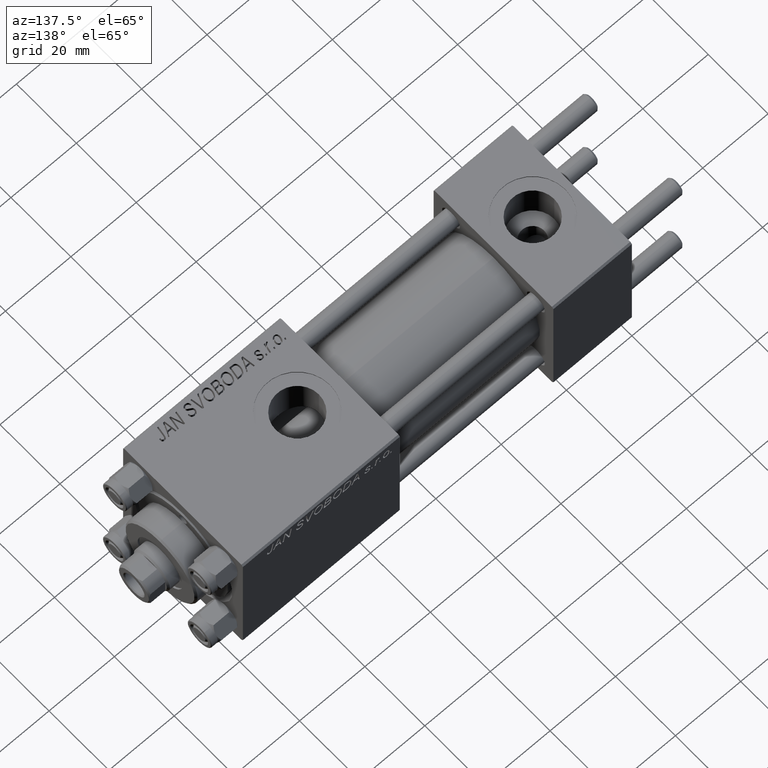
[diagram: clean part render]
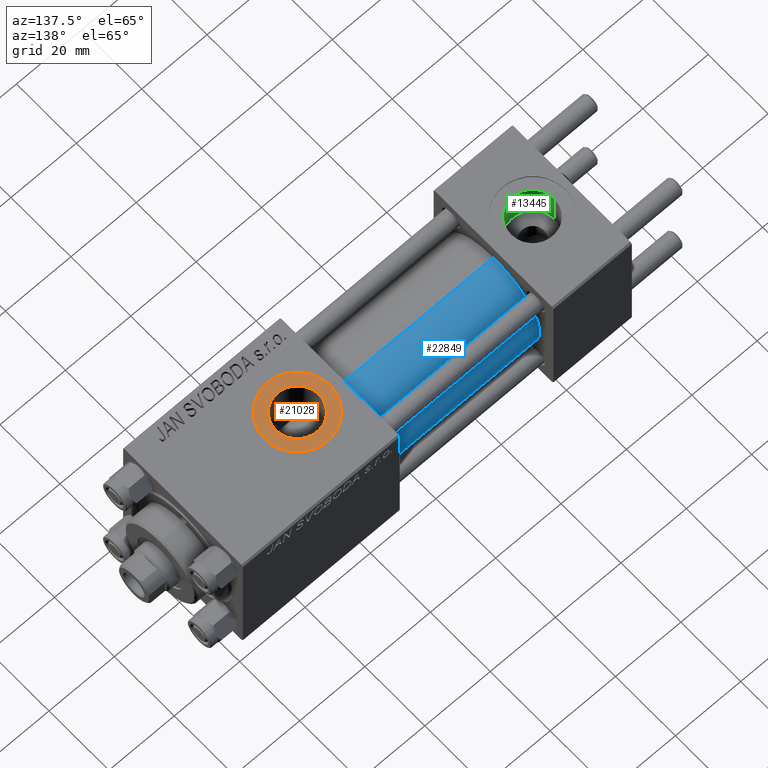
[diagram: same view with three faces highlighted in distinct colors, each labeled with its STEP entity id]
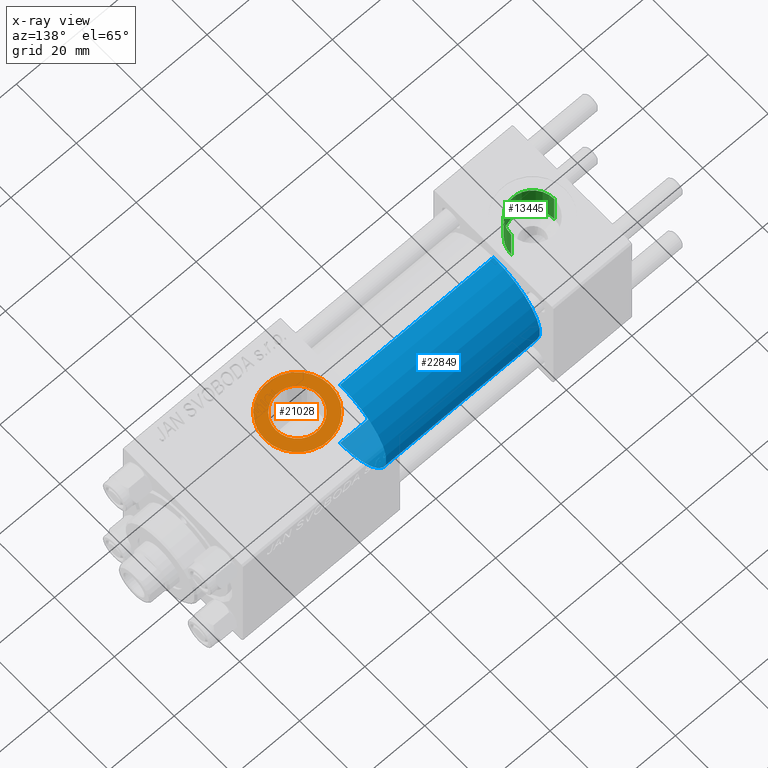
[diagram: x-ray of the same camera — body ghosted, the three highlighted faces saturated]
A machine part, auxiliary view with three faces highlighted in distinct colors.
The next image is the same camera in x-ray (body ghosted, the three faces saturated) — at least one of them is partly hidden behind the body in this view.
Their STEP definitions:

[orange] entity #21028 — the highlighted planar face has unit normal (0, 0, 1).
#3891 = CARTESIAN_POINT ( 'NONE',  ( 73.99999999999845102, -5.100766768292640183E-16, 19.80000000000000071 ) ) ;
#4018 = FACE_BOUND ( 'NONE', #21184, .T. ) ;
#4790 = FACE_OUTER_BOUND ( 'NONE', #8152, .T. ) ;
#4910 = DIRECTION ( 'NONE',  ( 1.000000000000000000, 0.000000000000000000, 0.000000000000000000 ) ) ;
#5058 = CARTESIAN_POINT ( 'NONE',  ( 84.00000000000000000, -1.734723475976806897E-15, 19.80000000000000071 ) ) ;
#8152 = EDGE_LOOP ( 'NONE', ( #40155, #45210 ) ) ;
#9766 = DIRECTION ( 'NONE',  ( 1.000000000000000000, 0.000000000000000000, 0.000000000000000000 ) ) ;
#10457 = DIRECTION ( 'NONE',  ( 1.000000000000000000, 0.000000000000000000, 0.000000000000000000 ) ) ;
#12867 = AXIS2_PLACEMENT_3D ( 'NONE', #32316, #24989, #4910 ) ;
#13642 = AXIS2_PLACEMENT_3D ( 'NONE', #16283, #36628, #35587 ) ;
#14509 = AXIS2_PLACEMENT_3D ( 'NONE', #46203, #43053, #10457 ) ;
#14783 = ORIENTED_EDGE ( 'NONE', *, *, #20499, .T. ) ;
#16283 = CARTESIAN_POINT ( 'NONE',  ( 84.00000000000000000, -1.734723475976806897E-15, 19.80000000000000071 ) ) ;
#16395 = DIRECTION ( 'NONE',  ( -0.000000000000000000, -0.000000000000000000, -1.000000000000000000 ) ) ;
#18663 = CIRCLE ( 'NONE', #36180, 6.580000000001542837 ) ;
#19107 = VERTEX_POINT ( 'NONE', #21581 ) ;
#19671 = EDGE_CURVE ( 'NONE', #19107, #37206, #18663, .T. ) ;
#20499 = EDGE_CURVE ( 'NONE', #37206, #19107, #35348, .T. ) ;
#21028 = ADVANCED_FACE ( 'NONE', ( #4018, #4790 ), #36107, .T. ) ;
#21184 = EDGE_LOOP ( 'NONE', ( #14783, #41150 ) ) ;
#21581 = CARTESIAN_POINT ( 'NONE',  ( 90.58000000000154728, -9.289058821376599092E-16, 19.80000000000000071 ) ) ;
#24724 = DIRECTION ( 'NONE',  ( 1.000000000000000000, 0.000000000000000000, 0.000000000000000000 ) ) ;
#24989 = DIRECTION ( 'NONE',  ( -0.000000000000000000, -0.000000000000000000, -1.000000000000000000 ) ) ;
#25134 = DIRECTION ( 'NONE',  ( 0.000000000000000000, 0.000000000000000000, 1.000000000000000000 ) ) ;
#27728 = CARTESIAN_POINT ( 'NONE',  ( 94.00000000000154898, -1.734723475976806897E-15, 19.80000000000000071 ) ) ;
#27872 = CARTESIAN_POINT ( 'NONE',  ( 84.00000000000000000, -1.734723475976806897E-15, 19.80000000000000071 ) ) ;
#28755 = EDGE_CURVE ( 'NONE', #43520, #33661, #28875, .T. ) ;
#28875 = CIRCLE ( 'NONE', #37220, 10.00000000000154898 ) ;
#32316 = CARTESIAN_POINT ( 'NONE',  ( 84.00000000000000000, -1.734723475976806897E-15, 19.80000000000000071 ) ) ;
#33661 = VERTEX_POINT ( 'NONE', #3891 ) ;
#35348 = CIRCLE ( 'NONE', #12867, 6.580000000001542837 ) ;
#35587 = DIRECTION ( 'NONE',  ( 1.000000000000000000, 0.000000000000000000, -0.000000000000000000 ) ) ;
#36107 = PLANE ( 'NONE',  #13642 ) ;
#36180 = AXIS2_PLACEMENT_3D ( 'NONE', #27872, #16395, #24724 ) ;
#36228 = EDGE_CURVE ( 'NONE', #33661, #43520, #37014, .T. ) ;
#36628 = DIRECTION ( 'NONE',  ( 0.000000000000000000, 0.000000000000000000, 1.000000000000000000 ) ) ;
#37014 = CIRCLE ( 'NONE', #14509, 10.00000000000154898 ) ;
#37206 = VERTEX_POINT ( 'NONE', #49048 ) ;
#37220 = AXIS2_PLACEMENT_3D ( 'NONE', #5058, #25134, #9766 ) ;
#40155 = ORIENTED_EDGE ( 'NONE', *, *, #28755, .T. ) ;
#41150 = ORIENTED_EDGE ( 'NONE', *, *, #19671, .T. ) ;
#43053 = DIRECTION ( 'NONE',  ( 0.000000000000000000, 0.000000000000000000, 1.000000000000000000 ) ) ;
#43520 = VERTEX_POINT ( 'NONE', #27728 ) ;
#45210 = ORIENTED_EDGE ( 'NONE', *, *, #36228, .T. ) ;
#46203 = CARTESIAN_POINT ( 'NONE',  ( 84.00000000000000000, -1.734723475976806897E-15, 19.80000000000000071 ) ) ;
#49048 = CARTESIAN_POINT ( 'NONE',  ( 77.41999999999846693, -1.734723475976806897E-15, 19.80000000000000071 ) ) ;

[blue] entity #22849 — the highlighted cylindrical surface (partial cylindrical patch) has radius 15.5 mm, axis along (-1, -0, -0).
#259 = DIRECTION ( 'NONE',  ( -1.000000000000000000, -0.000000000000000000, -0.000000000000000000 ) ) ;
#907 = DIRECTION ( 'NONE',  ( 0.000000000000000000, 0.000000000000000000, -1.000000000000000000 ) ) ;
#1151 = DIRECTION ( 'NONE',  ( 1.000000000000000000, 0.000000000000000000, 0.000000000000000000 ) ) ;
#4091 = DIRECTION ( 'NONE',  ( 0.000000000000000000, 0.000000000000000000, 1.000000000000000000 ) ) ;
#5299 = CIRCLE ( 'NONE', #46141, 15.50000000000000000 ) ;
#6693 = CARTESIAN_POINT ( 'NONE',  ( 24.00000000000000000, 0.000000000000000000, 0.000000000000000000 ) ) ;
#9194 = CARTESIAN_POINT ( 'NONE',  ( 24.00000000000000000, 1.898202538678397557E-15, -15.50000000000000000 ) ) ;
#9237 = VECTOR ( 'NONE', #259, 1000.000000000000000 ) ;
#9532 = CARTESIAN_POINT ( 'NONE',  ( 71.00000000000001421, 0.000000000000000000, 0.000000000000000000 ) ) ;
#9636 = CARTESIAN_POINT ( 'NONE',  ( 71.00000000000001421, 1.898202538678397557E-15, -15.50000000000000000 ) ) ;
#10021 = EDGE_CURVE ( 'NONE', #29049, #47402, #19837, .T. ) ;
#11394 = DIRECTION ( 'NONE',  ( 1.000000000000000000, 0.000000000000000000, 0.000000000000000000 ) ) ;
#12189 = CYLINDRICAL_SURFACE ( 'NONE', #31124, 15.50000000000000000 ) ;
#13156 = CARTESIAN_POINT ( 'NONE',  ( 71.00000000000001421, 0.000000000000000000, 15.50000000000000000 ) ) ;
#18360 = EDGE_CURVE ( 'NONE', #47402, #41284, #5299, .T. ) ;
#19837 = LINE ( 'NONE', #28706, #9237 ) ;
#22849 = ADVANCED_FACE ( 'NONE', ( #47954 ), #12189, .T. ) ;
#23041 = VECTOR ( 'NONE', #45513, 1000.000000000000000 ) ;
#28706 = CARTESIAN_POINT ( 'NONE',  ( 71.00000000000001421, 1.898202538678397557E-15, -15.50000000000000000 ) ) ;
#28728 = EDGE_CURVE ( 'NONE', #42724, #41284, #44998, .T. ) ;
#29049 = VERTEX_POINT ( 'NONE', #9636 ) ;
#31124 = AXIS2_PLACEMENT_3D ( 'NONE', #32266, #47687, #4091 ) ;
#32266 = CARTESIAN_POINT ( 'NONE',  ( 71.00000000000001421, 0.000000000000000000, 0.000000000000000000 ) ) ;
#32371 = ORIENTED_EDGE ( 'NONE', *, *, #10021, .T. ) ;
#33952 = ORIENTED_EDGE ( 'NONE', *, *, #45400, .F. ) ;
#34808 = CIRCLE ( 'NONE', #41495, 15.50000000000000000 ) ;
#35031 = CARTESIAN_POINT ( 'NONE',  ( 24.00000000000000000, 0.000000000000000000, 15.50000000000000000 ) ) ;
#38711 = EDGE_LOOP ( 'NONE', ( #33952, #32371, #45175, #42620 ) ) ;
#41216 = CARTESIAN_POINT ( 'NONE',  ( 71.00000000000001421, 0.000000000000000000, 15.50000000000000000 ) ) ;
#41284 = VERTEX_POINT ( 'NONE', #35031 ) ;
#41495 = AXIS2_PLACEMENT_3D ( 'NONE', #9532, #1151, #907 ) ;
#42620 = ORIENTED_EDGE ( 'NONE', *, *, #28728, .F. ) ;
#42724 = VERTEX_POINT ( 'NONE', #41216 ) ;
#44998 = LINE ( 'NONE', #13156, #23041 ) ;
#45175 = ORIENTED_EDGE ( 'NONE', *, *, #18360, .T. ) ;
#45400 = EDGE_CURVE ( 'NONE', #29049, #42724, #34808, .T. ) ;
#45513 = DIRECTION ( 'NONE',  ( -1.000000000000000000, -0.000000000000000000, -0.000000000000000000 ) ) ;
#46141 = AXIS2_PLACEMENT_3D ( 'NONE', #6693, #11394, #47400 ) ;
#47400 = DIRECTION ( 'NONE',  ( 0.000000000000000000, 0.000000000000000000, 1.000000000000000000 ) ) ;
#47402 = VERTEX_POINT ( 'NONE', #9194 ) ;
#47687 = DIRECTION ( 'NONE',  ( -1.000000000000000000, -0.000000000000000000, -0.000000000000000000 ) ) ;
#47954 = FACE_OUTER_BOUND ( 'NONE', #38711, .T. ) ;

[green] entity #13445 — the highlighted cylindrical surface (edge-blend (fillet) strip) has radius 6.58 mm, axis along (0, 0, 1).
#165 = VERTEX_POINT ( 'NONE', #9407 ) ;
#1108 = ORIENTED_EDGE ( 'NONE', *, *, #40732, .F. ) ;
#1758 = LINE ( 'NONE', #29178, #6323 ) ;
#2089 = CARTESIAN_POINT ( 'NONE',  ( 12.00000000000000000, 1.540743955509788682E-30, 9.199999999999995737 ) ) ;
#3067 = DIRECTION ( 'NONE',  ( -0.000000000000000000, -0.000000000000000000, -1.000000000000000000 ) ) ;
#5432 = DIRECTION ( 'NONE',  ( -0.000000000000000000, -0.000000000000000000, 1.000000000000000000 ) ) ;
#6323 = VECTOR ( 'NONE', #5432, 1000.000000000000000 ) ;
#9407 = CARTESIAN_POINT ( 'NONE',  ( 18.57999999999999829, 1.540743955509788682E-30, 9.165987261146492315 ) ) ;
#12393 = LINE ( 'NONE', #41338, #13920 ) ;
#13445 = ADVANCED_FACE ( 'NONE', ( #13853 ), #25845, .F. ) ;
#13853 = FACE_OUTER_BOUND ( 'NONE', #20670, .T. ) ;
#13920 = VECTOR ( 'NONE', #28549, 1000.000000000000000 ) ;
#14033 = EDGE_CURVE ( 'NONE', #42829, #14313, #41819, .T. ) ;
#14313 = VERTEX_POINT ( 'NONE', #26508 ) ;
#18018 = DIRECTION ( 'NONE',  ( 1.000000000000000000, 0.000000000000000000, 0.000000000000000000 ) ) ;
#18229 = CARTESIAN_POINT ( 'NONE',  ( 5.420000000000000817, 8.058175938389596335E-16, 19.79999999999999716 ) ) ;
#19536 = ORIENTED_EDGE ( 'NONE', *, *, #47099, .T. ) ;
#19553 = CIRCLE ( 'NONE', #30405, 6.579999999999999183 ) ;
#20670 = EDGE_LOOP ( 'NONE', ( #46488, #19536, #20970, #1108 ) ) ;
#20970 = ORIENTED_EDGE ( 'NONE', *, *, #14033, .T. ) ;
#24677 = CARTESIAN_POINT ( 'NONE',  ( 5.420000000000000817, 8.058175938389596335E-16, 9.165987261146492315 ) ) ;
#24944 = DIRECTION ( 'NONE',  ( 0.000000000000000000, 0.000000000000000000, 1.000000000000000000 ) ) ;
#25845 = CYLINDRICAL_SURFACE ( 'NONE', #40163, 6.579999999999999183 ) ;
#26508 = CARTESIAN_POINT ( 'NONE',  ( 18.57999999999999829, 1.540743955509788682E-30, 19.79999999999999716 ) ) ;
#27136 = DIRECTION ( 'NONE',  ( -0.000000000000000000, -0.000000000000000000, 1.000000000000000000 ) ) ;
#28549 = DIRECTION ( 'NONE',  ( -0.000000000000000000, -0.000000000000000000, 1.000000000000000000 ) ) ;
#28872 = DIRECTION ( 'NONE',  ( 1.000000000000000000, 0.000000000000000000, 0.000000000000000000 ) ) ;
#29178 = CARTESIAN_POINT ( 'NONE',  ( 18.57999999999999829, 1.540743955509788682E-30, 9.199999999999995737 ) ) ;
#30405 = AXIS2_PLACEMENT_3D ( 'NONE', #31492, #3067, #43512 ) ;
#31492 = CARTESIAN_POINT ( 'NONE',  ( 12.00000000000000000, 1.540743955509788682E-30, 9.165987261146492315 ) ) ;
#32781 = CARTESIAN_POINT ( 'NONE',  ( 12.00000000000000000, 1.540743955509788682E-30, 19.79999999999999716 ) ) ;
#33106 = VERTEX_POINT ( 'NONE', #24677 ) ;
#36814 = AXIS2_PLACEMENT_3D ( 'NONE', #32781, #24944, #28872 ) ;
#37998 = EDGE_CURVE ( 'NONE', #165, #33106, #19553, .T. ) ;
#40163 = AXIS2_PLACEMENT_3D ( 'NONE', #2089, #27136, #18018 ) ;
#40732 = EDGE_CURVE ( 'NONE', #165, #14313, #1758, .T. ) ;
#41338 = CARTESIAN_POINT ( 'NONE',  ( 5.420000000000000817, 8.058175938389596335E-16, 9.199999999999995737 ) ) ;
#41819 = CIRCLE ( 'NONE', #36814, 6.579999999999999183 ) ;
#42829 = VERTEX_POINT ( 'NONE', #18229 ) ;
#43512 = DIRECTION ( 'NONE',  ( 1.000000000000000000, 0.000000000000000000, 0.000000000000000000 ) ) ;
#46488 = ORIENTED_EDGE ( 'NONE', *, *, #37998, .T. ) ;
#47099 = EDGE_CURVE ( 'NONE', #33106, #42829, #12393, .T. ) ;